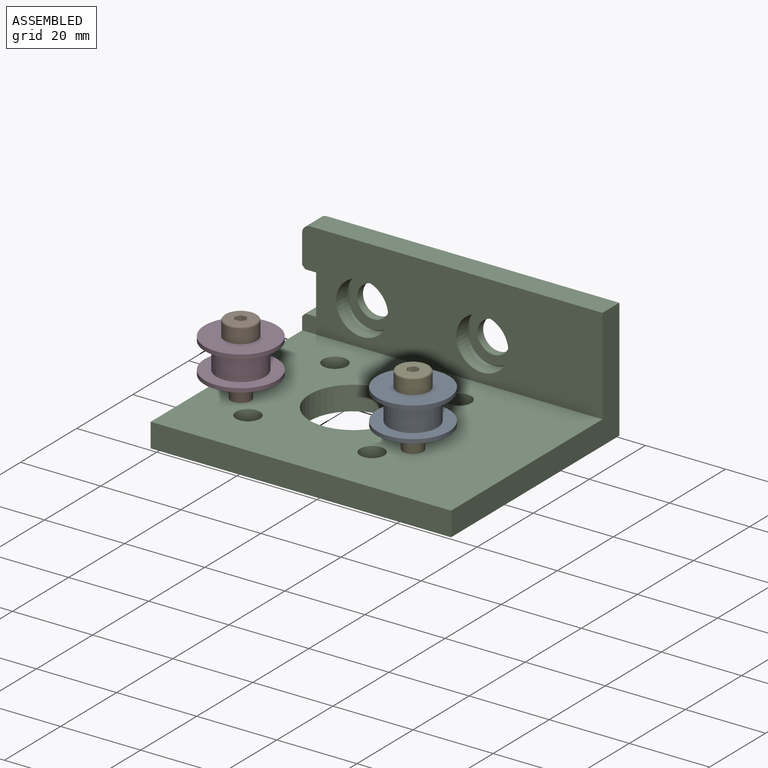
[diagram: assembled view]
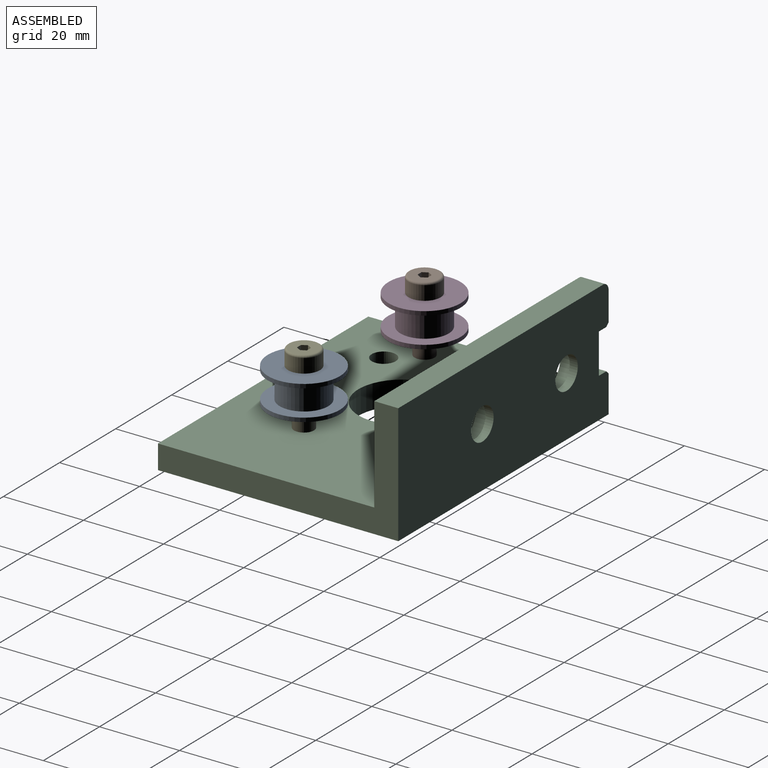
[diagram: assembled view, second angle]
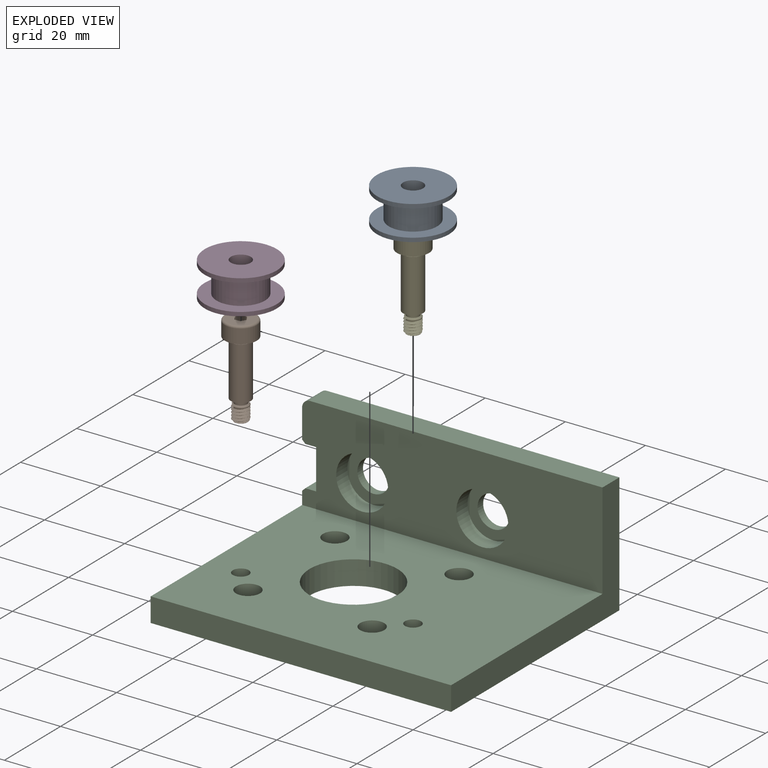
[diagram: exploded view]
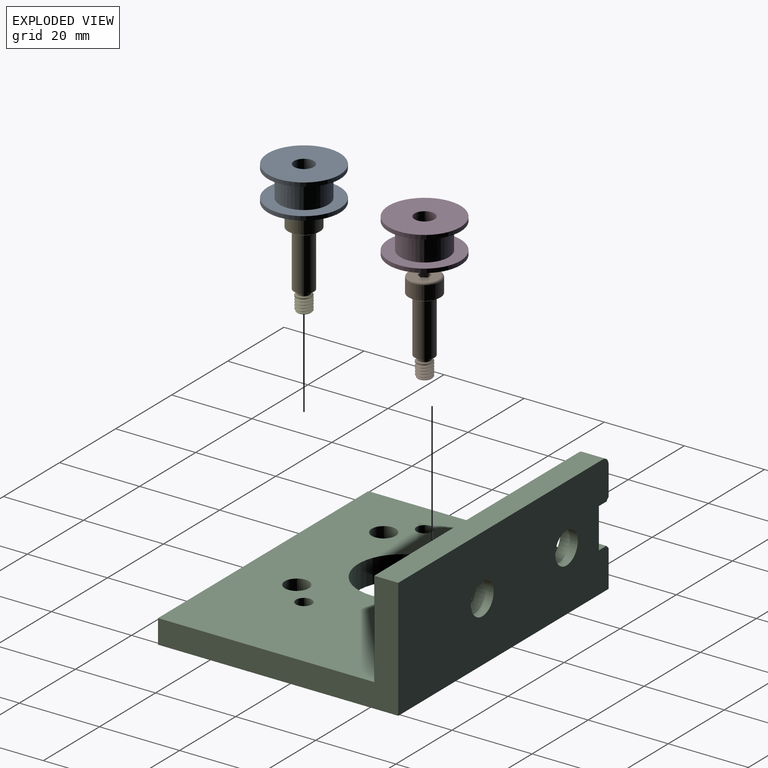
[diagram: exploded view, second angle]
ASSEMBLY  parts=5 mates=4
PART A: 8 faces, bbox 18x18x8.6 mm
  f0: cylinder r=6.05mm len=12.1mm, axis (0,0,1), area 250.9mm2, adj f1,f6
  f1: plane 18x18mm, normal (0,0,1), area 139.5mm2, adj f0,f2
  f2: cylinder r=9mm len=18mm, axis (0,0,1), area 56.5mm2, adj f1,f3
  f3: plane 18x18mm, normal (0,0,-1), area 234.8mm2, adj f2,f7
  f4: plane 18x18mm, normal (0,0,1), area 234.8mm2, adj f5,f7
  f5: cylinder r=9mm len=18mm, axis (0,0,1), area 56.5mm2, adj f4,f6
  f6: plane 18x18mm, normal (0,0,-1), area 139.5mm2, adj f0,f5
  f7: cylinder r=2.5mm len=8.6mm, axis (0,0,1), area 135.1mm2, adj f3,f4
PART B: 24 faces, bbox 8.8x8.8x23.6 mm
  f0: plane 7x7mm, normal (0,0,1), area 33.1mm2, adj f12,f17,f18,f19,f20,f21,f22
  f1: cylinder r=2mm len=4mm, axis (0,0,1), area 2.6mm2, adj f2,f13,f14,f15,f16
  f2: cone r=2mm half-angle=45deg, axis (0,0,-1), area 4.2mm2, adj f1,f3,f14,f16
  f3: plane 3.4x3.4mm, normal (0,0,1), area 1.5mm2, adj f2,f4
  f4: cylinder r=1.55mm len=3.1mm, axis (0,0,1), area 9.7mm2, adj f3,f10
  f5: plane 5x5mm, normal (0,0,1), area 1.5mm2, adj f6,f9
  f6: cylinder r=2.4mm len=4.8mm, axis (0,0,1), area 12.1mm2, adj f5,f8
  f7: cylinder r=4mm len=8mm, axis (0,0,-1), area 88mm2, adj f8,f12
  f8: plane 8x8mm, normal (0,0,-1), area 32.2mm2, adj f6,f7
  f9: cylinder r=2.5mm len=13.2mm, axis (0,0,1), area 207.3mm2, adj f5,f10
  f10: plane 5x5mm, normal (0,0,-1), area 12.1mm2, adj f4,f9
  f11: plane 3.51x3.32mm, normal (0,0,-1), area 8.4mm2, adj f13,f15,f16
  f12: torus R=3.5mm, axis (0,0,1), area 18.8mm2, adj f0,f7
  f13: cone r=1.7mm half-angle=45deg, axis (0,0,1), area 1.4mm2, adj f1,f11,f15,f16
  f14: plane 0.58x0.56mm, normal (-0.97,0.22,0), area 0.2mm2, adj f1,f2,f15,f16
  f15: bspline ~4.62x4.22mm, area 35.7mm2, adj f1,f11,f13,f14,f16
  f16: bspline ~4.62x4.28mm, area 39.7mm2, adj f1,f2,f11,f13,f14,f15
  f17: plane 2x1.25mm, normal (-0.87,0.5,0), area 2.9mm2, adj f0,f18,f22,f23
  f18: plane 2x1.25mm, normal (-0.87,-0.5,0), area 2.9mm2, adj f0,f17,f19,f23
  f19: plane 2x1.44mm, normal (0,-1,0), area 2.9mm2, adj f0,f18,f20,f23
  f20: plane 2x1.25mm, normal (0.87,-0.5,0), area 2.9mm2, adj f0,f19,f21,f23
  f21: plane 2x1.25mm, normal (0.87,0.5,0), area 2.9mm2, adj f0,f20,f22,f23
  f22: plane 2x1.44mm, normal (0,1,0), area 2.9mm2, adj f0,f17,f21,f23
  f23: plane 2.89x2.5mm, normal (0,0,1), area 5.4mm2, adj f17,f18,f19,f20,f21,f22
PART C: 36 faces, bbox 75x60x30 mm
  f0: plane 7.2x6mm, normal (-1,0,0), area 43.2mm2, adj f1,f4,f34,f35
  f1: plane 75x24mm, normal (0,-1,0), area 1498mm2, adj f0,f3,f5,f6,f8,f26,f29,f30
  f2: plane 75x6mm, normal (0,-1,0), area 450mm2, adj f3,f5,f6,f7
  f3: plane 60x30mm, normal (1,0,0), area 504mm2, adj f1,f2,f4,f6,f7,f8
  f4: plane 75x30mm, normal (0,1,0), area 2113mm2, adj f0,f3,f5,f7,f8,f24,f27,f30
  f5: plane 60x9.2mm, normal (-1,0,0), area 379.2mm2, adj f1,f2,f4,f6,f7,f33
  f6: plane 75x54mm, normal (0,0,1), area 3531.6mm2, adj f1,f2,f3,f5,f11,f14,f17,f20
  f7: plane 75x60mm, normal (0,0,-1), area 4066.5mm2, adj f2,f3,f4,f5,f9,f12,f15,f18
  f8: plane 73x6mm, normal (0,0,1), area 438mm2, adj f1,f3,f4,f35
  f9: cylinder r=1.5mm len=3mm, axis (0,0,1), area 23.6mm2, adj f7,f10
  f10: plane 6x6mm, normal (0,0,1), area 21.2mm2, adj f9,f11
  f11: cylinder r=3mm len=6mm, axis (0,0,1), area 66mm2, adj f6,f10
  f12: cylinder r=1.5mm len=3mm, axis (0,0,1), area 23.6mm2, adj f7,f13
  f13: plane 6x6mm, normal (0,0,1), area 21.2mm2, adj f12,f14
  f14: cylinder r=3mm len=6mm, axis (0,0,1), area 66mm2, adj f6,f13
  f15: cylinder r=1.5mm len=3mm, axis (0,0,1), area 23.6mm2, adj f7,f16
  f16: plane 6x6mm, normal (0,0,1), area 21.2mm2, adj f15,f17
  f17: cylinder r=3mm len=6mm, axis (0,0,1), area 66mm2, adj f6,f16
  f18: cylinder r=1.5mm len=3mm, axis (0,0,1), area 23.6mm2, adj f7,f19
  f19: plane 6x6mm, normal (0,0,1), area 21.2mm2, adj f18,f20
  f20: cylinder r=3mm len=6mm, axis (0,0,1), area 66mm2, adj f6,f19
  f21: cylinder r=11mm len=22mm, axis (0,0,1), area 414.7mm2, adj f6,f7
  f22: cylinder r=2mm len=6mm, axis (0,0,1), area 75.4mm2, adj f6,f7
  f23: cylinder r=2mm len=6mm, axis (0,0,1), area 75.4mm2, adj f6,f7
  f24: cylinder r=4mm len=8mm, axis (0,-1,0), area 50.3mm2, adj f4,f25
  f25: plane 13x13mm, normal (0,-1,0), area 82.5mm2, adj f24,f26
  f26: cylinder r=6.5mm len=13mm, axis (0,-1,0), area 163.4mm2, adj f1,f25
  f27: cylinder r=4mm len=8mm, axis (0,-1,0), area 50.3mm2, adj f4,f28
  f28: plane 13x13mm, normal (0,-1,0), area 82.5mm2, adj f27,f29
  f29: cylinder r=6.5mm len=13mm, axis (0,-1,0), area 163.4mm2, adj f1,f28
  f30: plane 6x2.7mm, normal (0,0,-1), area 16.2mm2, adj f1,f4,f31,f34
  f31: plane 10x6mm, normal (-1,0,0), area 60mm2, adj f1,f4,f30,f32
  f32: plane 6x2.7mm, normal (0,0,1), area 16.2mm2, adj f1,f4,f31,f33
  f33: plane 6x0.8mm, normal (-0.71,0,0.71), area 6.8mm2, adj f1,f4,f5,f32
  f34: plane 6x0.8mm, normal (-0.71,0,-0.71), area 6.8mm2, adj f0,f1,f4,f30
  f35: cylinder r=2mm len=6mm, axis (0,1,0), area 18.8mm2, adj f0,f1,f4,f8
PART D: same geometry as A
PART E: same geometry as B
PLACE A t=(59.77,8.9,-10.58)mm
PLACE B t=(16.77,8.9,-6.28)mm
PLACE C t=(45.77,18.9,-26.28)mm fixed
PLACE D t=(16.77,8.9,-10.58)mm
PLACE E t=(59.77,8.9,-6.28)mm
MATE fastened B.f1 <-> C.f22  axis (0,0,1) through (16.77,8.9,-20.28)mm
MATE slider A.f0 <-> E.f1  axis (0,0,1) through (59.77,8.9,-6.28)mm
MATE slider B.f1 <-> D.f0  axis (0,0,-1) through (16.77,8.9,-6.28)mm
MATE fastened E.f1 <-> C.f23  axis (0,0,1) through (59.77,8.9,-20.28)mm
